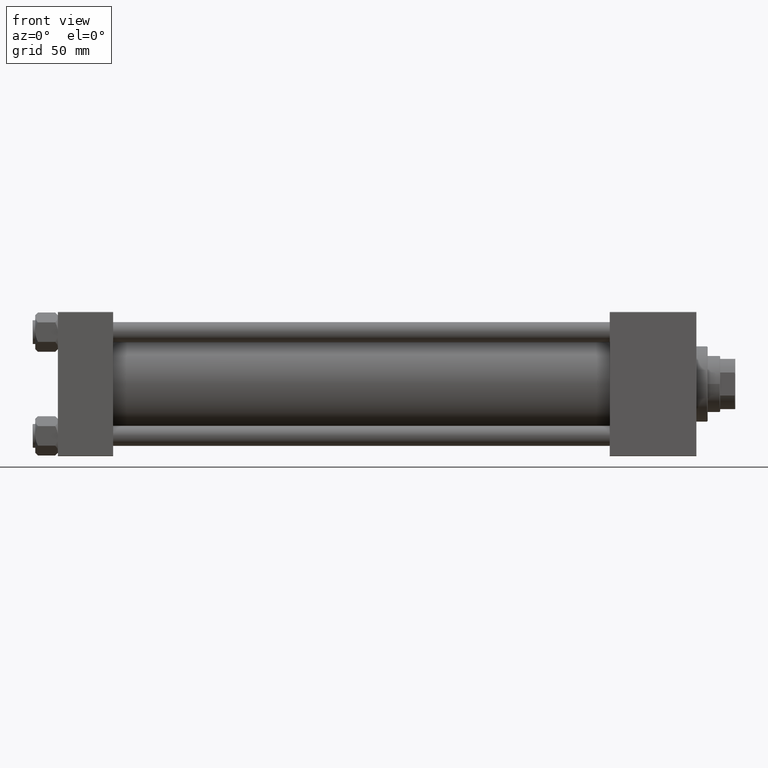
[diagram: clean part render]
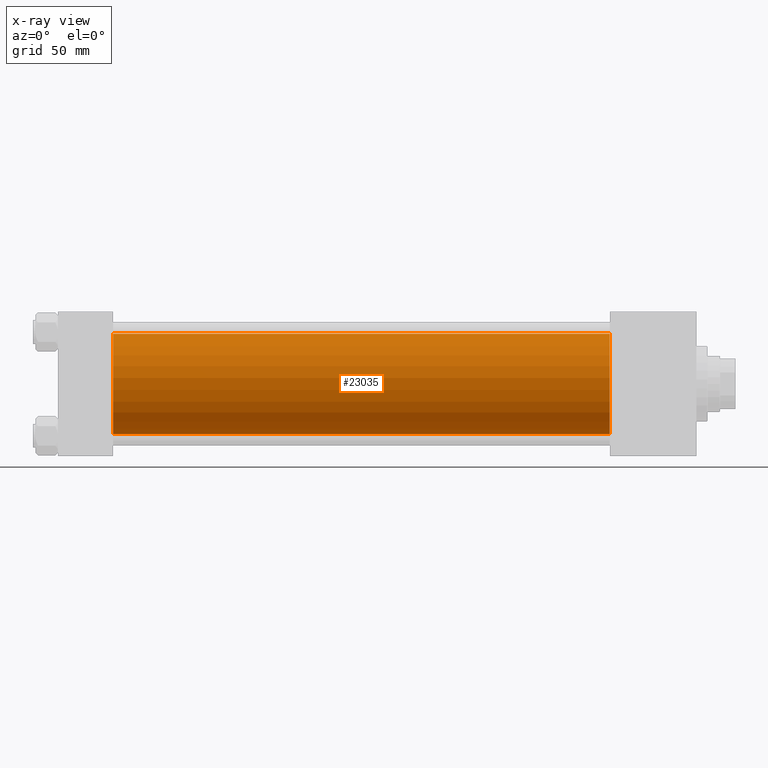
[diagram: x-ray — body ghosted, one internal face saturated and labeled with its STEP entity id]
A machine part, front view, then the same camera in x-ray: the body is ghosted and one INTERNAL B-rep face — a face not visible from any outside direction — is saturated and labeled: STEP entity #23035.
In plain terms, the highlighted cylindrical surface (partial cylindrical patch) has radius 40 mm, axis along (-1, -0, -0).
Its self-contained STEP definition (entity closure, byte-faithful):
#310 = AXIS2_PLACEMENT_3D ( 'NONE', #19069, #18807, #18543 ) ;
#1121 = CARTESIAN_POINT ( 'NONE',  ( 440.0000000000000000, -2.602085213965210642E-15, 0.000000000000000000 ) ) ;
#4533 = EDGE_CURVE ( 'NONE', #13211, #18149, #5236, .T. ) ;
#5236 = LINE ( 'NONE', #25235, #33827 ) ;
#7356 = CARTESIAN_POINT ( 'NONE',  ( 440.0000000000000000, -2.602085213965210642E-15, 40.00000000000000000 ) ) ;
#7921 = ORIENTED_EDGE ( 'NONE', *, *, #47195, .F. ) ;
#10087 = CARTESIAN_POINT ( 'NONE',  ( 44.00000000000000000, -2.602085213965210642E-15, 0.000000000000000000 ) ) ;
#11179 = CYLINDRICAL_SURFACE ( 'NONE', #310, 40.00000000000000000 ) ;
#11861 = ORIENTED_EDGE ( 'NONE', *, *, #13332, .F. ) ;
#12703 = DIRECTION ( 'NONE',  ( 0.000000000000000000, 0.000000000000000000, -1.000000000000000000 ) ) ;
#13165 = CARTESIAN_POINT ( 'NONE',  ( 440.0000000000000000, 2.296501982624201990E-15, -40.00000000000000000 ) ) ;
#13211 = VERTEX_POINT ( 'NONE', #13165 ) ;
#13332 = EDGE_CURVE ( 'NONE', #31743, #43858, #39416, .T. ) ;
#16657 = DIRECTION ( 'NONE',  ( 1.000000000000000000, 0.000000000000000000, 0.000000000000000000 ) ) ;
#18149 = VERTEX_POINT ( 'NONE', #47974 ) ;
#18543 = DIRECTION ( 'NONE',  ( 0.000000000000000000, 0.000000000000000000, 1.000000000000000000 ) ) ;
#18807 = DIRECTION ( 'NONE',  ( -1.000000000000000000, -0.000000000000000000, -0.000000000000000000 ) ) ;
#19069 = CARTESIAN_POINT ( 'NONE',  ( 440.0000000000000000, -2.602085213965210642E-15, 0.000000000000000000 ) ) ;
#20349 = AXIS2_PLACEMENT_3D ( 'NONE', #10087, #22185, #38212 ) ;
#20597 = CARTESIAN_POINT ( 'NONE',  ( 440.0000000000000000, -2.602085213965210642E-15, 40.00000000000000000 ) ) ;
#22185 = DIRECTION ( 'NONE',  ( 1.000000000000000000, 0.000000000000000000, 0.000000000000000000 ) ) ;
#22224 = FACE_OUTER_BOUND ( 'NONE', #30692, .T. ) ;
#23035 = ADVANCED_FACE ( 'NONE', ( #22224 ), #11179, .F. ) ;
#23132 = ORIENTED_EDGE ( 'NONE', *, *, #4533, .T. ) ;
#23697 = CIRCLE ( 'NONE', #20349, 40.00000000000000000 ) ;
#25235 = CARTESIAN_POINT ( 'NONE',  ( 440.0000000000000000, 2.296501982624201990E-15, -40.00000000000000000 ) ) ;
#30692 = EDGE_LOOP ( 'NONE', ( #31829, #23132, #7921, #11861 ) ) ;
#31009 = DIRECTION ( 'NONE',  ( -1.000000000000000000, -0.000000000000000000, -0.000000000000000000 ) ) ;
#31743 = VERTEX_POINT ( 'NONE', #20597 ) ;
#31829 = ORIENTED_EDGE ( 'NONE', *, *, #40031, .T. ) ;
#33222 = VECTOR ( 'NONE', #31009, 1000.000000000000000 ) ;
#33827 = VECTOR ( 'NONE', #45707, 1000.000000000000000 ) ;
#38212 = DIRECTION ( 'NONE',  ( 0.000000000000000000, 0.000000000000000000, -1.000000000000000000 ) ) ;
#39416 = LINE ( 'NONE', #7356, #33222 ) ;
#40031 = EDGE_CURVE ( 'NONE', #31743, #13211, #49470, .T. ) ;
#42792 = AXIS2_PLACEMENT_3D ( 'NONE', #1121, #16657, #12703 ) ;
#43858 = VERTEX_POINT ( 'NONE', #48613 ) ;
#45707 = DIRECTION ( 'NONE',  ( -1.000000000000000000, -0.000000000000000000, -0.000000000000000000 ) ) ;
#47195 = EDGE_CURVE ( 'NONE', #43858, #18149, #23697, .T. ) ;
#47974 = CARTESIAN_POINT ( 'NONE',  ( 44.00000000000000000, 2.296501982624201990E-15, -40.00000000000000000 ) ) ;
#48613 = CARTESIAN_POINT ( 'NONE',  ( 44.00000000000000000, -2.602085213965210642E-15, 40.00000000000000000 ) ) ;
#49470 = CIRCLE ( 'NONE', #42792, 40.00000000000000000 ) ;